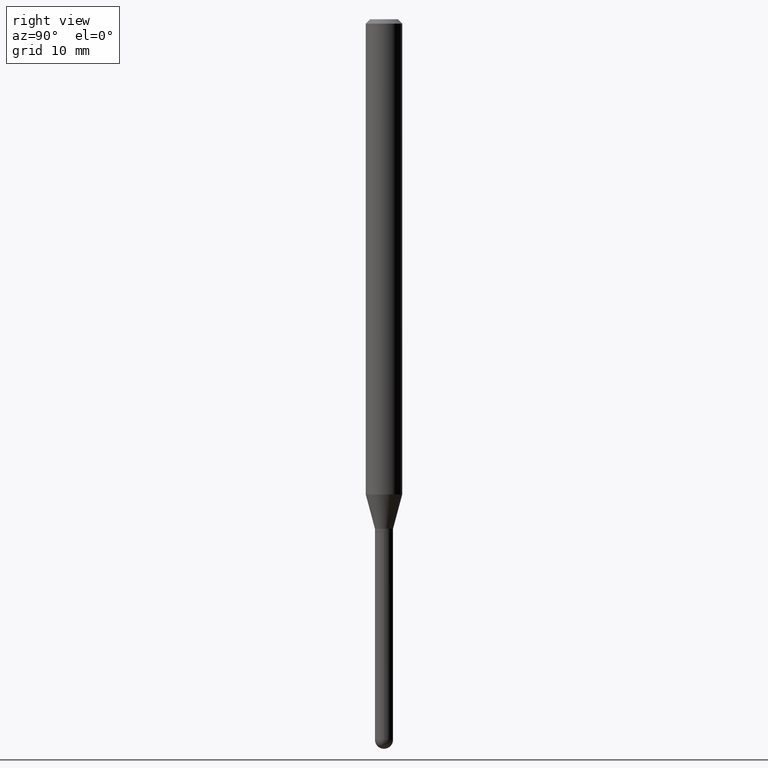
[diagram: clean part render]
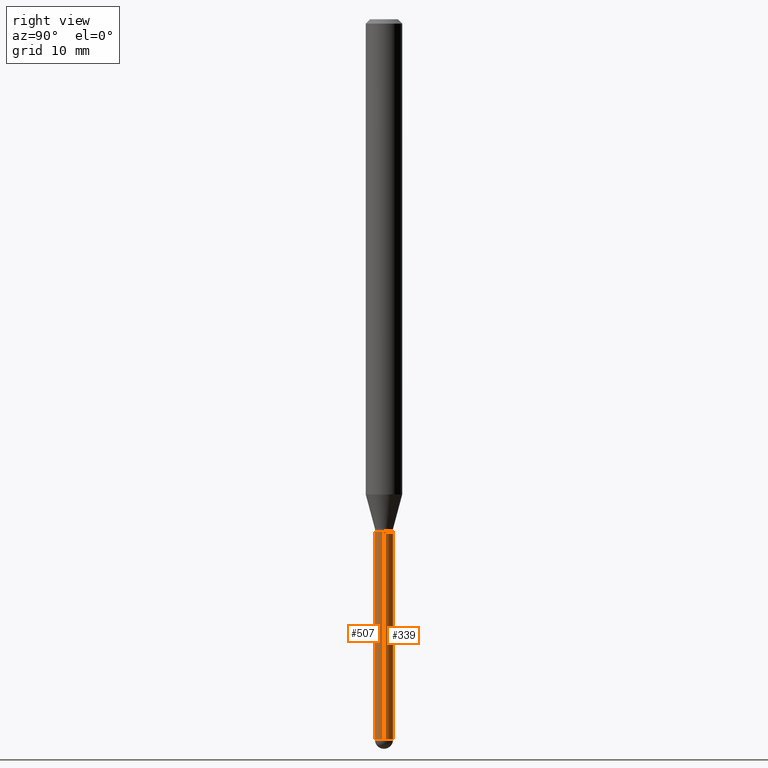
[diagram: same view with one multi-face feature highlighted, each face labeled with its STEP entity id]
A machine part, right view. The highlighted faces form ONE feature: a constant-radius fillet chain: 2 tangent blend faces with common blend radius 0.7874 mm. The faces share edges in the B-rep.
Their STEP definitions:
[1] entity #507 (Cylinder):
#3 = LINE ( 'NONE', #278, #430 ) ;
#10 = DIRECTION ( 'NONE',  ( -2.445468806185136597E-29, 3.491481338843145583E-15, 1.000000000000000000 ) ) ;
#15 = AXIS2_PLACEMENT_3D ( 'NONE', #427, #466, #35 ) ;
#26 = DIRECTION ( 'NONE',  ( 1.000000000000000000, -6.982962677686270655E-15, 0.000000000000000000 ) ) ;
#35 = DIRECTION ( 'NONE',  ( 1.000000000000000000, -6.982962677686270655E-15, 0.000000000000000000 ) ) ;
#41 = VERTEX_POINT ( 'NONE', #416 ) ;
#43 = ORIENTED_EDGE ( 'NONE', *, *, #242, .F. ) ;
#50 = CIRCLE ( 'NONE', #321, 0.03099999999999999978 ) ;
#65 = DIRECTION ( 'NONE',  ( -2.445468806185136877E-29, 3.491481338843145188E-15, 1.000000000000000000 ) ) ;
#71 = CARTESIAN_POINT ( 'NONE',  ( 0.03099999999999999978, -2.164718430082742572E-16, 1.511614800496739984E-30 ) ) ;
#85 = CARTESIAN_POINT ( 'NONE',  ( -0.03099999999999999978, -7.155486080220514781E-15, -1.756000000000000005 ) ) ;
#99 = VERTEX_POINT ( 'NONE', #151 ) ;
#107 = FACE_OUTER_BOUND ( 'NONE', #484, .T. ) ;
#151 = CARTESIAN_POINT ( 'NONE',  ( 0.03099999999999999978, -7.592226171314421154E-15, -2.469000000000000306 ) ) ;
#160 = EDGE_CURVE ( 'NONE', #99, #450, #418, .T. ) ;
#161 = DIRECTION ( 'NONE',  ( -2.445468806185136877E-29, 3.491481338843145188E-15, 1.000000000000000000 ) ) ;
#166 = CIRCLE ( 'NONE', #462, 0.03099999999999999978 ) ;
#172 = ORIENTED_EDGE ( 'NONE', *, *, #184, .T. ) ;
#182 = AXIS2_PLACEMENT_3D ( 'NONE', #261, #489, #415 ) ;
#184 = EDGE_CURVE ( 'NONE', #41, #237, #166, .T. ) ;
#188 = CARTESIAN_POINT ( 'NONE',  ( 4.294243223661099859E-29, -6.131041231008564292E-15, -1.756000000000000005 ) ) ;
#195 = ORIENTED_EDGE ( 'NONE', *, *, #366, .F. ) ;
#231 = EDGE_CURVE ( 'NONE', #237, #99, #238, .T. ) ;
#237 = VERTEX_POINT ( 'NONE', #431 ) ;
#238 = CIRCLE ( 'NONE', #15, 0.03099999999999999978 ) ;
#239 = DIRECTION ( 'NONE',  ( 1.000000000000000000, -6.982962677686270655E-15, 0.000000000000000000 ) ) ;
#240 = VERTEX_POINT ( 'NONE', #85 ) ;
#242 = EDGE_CURVE ( 'NONE', #41, #240, #3, .T. ) ;
#261 = CARTESIAN_POINT ( 'NONE',  ( 0.000000000000000000, 0.000000000000000000, 0.000000000000000000 ) ) ;
#278 = CARTESIAN_POINT ( 'NONE',  ( -0.03099999999999999978, 2.202682480856310560E-16, -1.524869877979020612E-30 ) ) ;
#288 = VECTOR ( 'NONE', #65, 39.37007874015748143 ) ;
#316 = CARTESIAN_POINT ( 'NONE',  ( 6.037862482471103495E-29, -8.620467425603728566E-15, -2.469000000000000306 ) ) ;
#321 = AXIS2_PLACEMENT_3D ( 'NONE', #188, #379, #26 ) ;
#336 = CYLINDRICAL_SURFACE ( 'NONE', #182, 0.03099999999999999978 ) ;
#364 = ORIENTED_EDGE ( 'NONE', *, *, #160, .T. ) ;
#366 = EDGE_CURVE ( 'NONE', #240, #450, #50, .T. ) ;
#379 = DIRECTION ( 'NONE',  ( -2.445468806185136597E-29, 3.491481338843145583E-15, 1.000000000000000000 ) ) ;
#388 = CARTESIAN_POINT ( 'NONE',  ( 0.03099999999999999978, -6.347513074016838623E-15, -1.756000000000000005 ) ) ;
#415 = DIRECTION ( 'NONE',  ( 1.000000000000000000, -6.982962677686266711E-15, 4.876176775795935232E-29 ) ) ;
#416 = CARTESIAN_POINT ( 'NONE',  ( -0.03099999999999999978, -7.155486080220514781E-15, -2.469000000000000306 ) ) ;
#418 = LINE ( 'NONE', #71, #288 ) ;
#427 = CARTESIAN_POINT ( 'NONE',  ( 6.037862482471103495E-29, -8.620467425603728566E-15, -2.469000000000000306 ) ) ;
#430 = VECTOR ( 'NONE', #161, 39.37007874015748143 ) ;
#431 = CARTESIAN_POINT ( 'NONE',  ( -2.202682480855692291E-16, -0.03100000000000842360, -2.469000000000000306 ) ) ;
#450 = VERTEX_POINT ( 'NONE', #388 ) ;
#462 = AXIS2_PLACEMENT_3D ( 'NONE', #316, #10, #239 ) ;
#466 = DIRECTION ( 'NONE',  ( -2.445468806185136597E-29, 3.491481338843145583E-15, 1.000000000000000000 ) ) ;
#478 = ORIENTED_EDGE ( 'NONE', *, *, #231, .T. ) ;
#484 = EDGE_LOOP ( 'NONE', ( #43, #172, #478, #364, #195 ) ) ;
#489 = DIRECTION ( 'NONE',  ( -2.445468806185136597E-29, 3.491481338843145583E-15, 1.000000000000000000 ) ) ;
#507 = ADVANCED_FACE ( 'NONE', ( #107 ), #336, .T. ) ;
[2] entity #339 (Cylinder):
#3 = LINE ( 'NONE', #278, #430 ) ;
#23 = AXIS2_PLACEMENT_3D ( 'NONE', #232, #223, #351 ) ;
#41 = VERTEX_POINT ( 'NONE', #416 ) ;
#63 = DIRECTION ( 'NONE',  ( -2.445468806185136597E-29, 3.491481338843145583E-15, 1.000000000000000000 ) ) ;
#65 = DIRECTION ( 'NONE',  ( -2.445468806185136877E-29, 3.491481338843145188E-15, 1.000000000000000000 ) ) ;
#66 = CARTESIAN_POINT ( 'NONE',  ( 6.037862482471103495E-29, -8.620467425603728566E-15, -2.469000000000000306 ) ) ;
#71 = CARTESIAN_POINT ( 'NONE',  ( 0.03099999999999999978, -2.164718430082742572E-16, 1.511614800496739984E-30 ) ) ;
#85 = CARTESIAN_POINT ( 'NONE',  ( -0.03099999999999999978, -7.155486080220514781E-15, -1.756000000000000005 ) ) ;
#99 = VERTEX_POINT ( 'NONE', #151 ) ;
#101 = CIRCLE ( 'NONE', #23, 0.03099999999999999978 ) ;
#121 = EDGE_CURVE ( 'NONE', #450, #240, #101, .T. ) ;
#132 = ORIENTED_EDGE ( 'NONE', *, *, #160, .F. ) ;
#139 = CARTESIAN_POINT ( 'NONE',  ( 0.000000000000000000, 0.000000000000000000, 0.000000000000000000 ) ) ;
#147 = ORIENTED_EDGE ( 'NONE', *, *, #380, .T. ) ;
#151 = CARTESIAN_POINT ( 'NONE',  ( 0.03099999999999999978, -7.592226171314421154E-15, -2.469000000000000306 ) ) ;
#160 = EDGE_CURVE ( 'NONE', #99, #450, #418, .T. ) ;
#161 = DIRECTION ( 'NONE',  ( -2.445468806185136877E-29, 3.491481338843145188E-15, 1.000000000000000000 ) ) ;
#163 = EDGE_LOOP ( 'NONE', ( #204, #367, #395, #132, #147 ) ) ;
#167 = DIRECTION ( 'NONE',  ( 1.000000000000000000, -6.982962677686266711E-15, 4.876176775795935232E-29 ) ) ;
#204 = ORIENTED_EDGE ( 'NONE', *, *, #385, .T. ) ;
#223 = DIRECTION ( 'NONE',  ( -2.445468806185136597E-29, 3.491481338843145583E-15, 1.000000000000000000 ) ) ;
#232 = CARTESIAN_POINT ( 'NONE',  ( 4.294243223661099859E-29, -6.131041231008564292E-15, -1.756000000000000005 ) ) ;
#240 = VERTEX_POINT ( 'NONE', #85 ) ;
#242 = EDGE_CURVE ( 'NONE', #41, #240, #3, .T. ) ;
#259 = CYLINDRICAL_SURFACE ( 'NONE', #280, 0.03099999999999999978 ) ;
#266 = CARTESIAN_POINT ( 'NONE',  ( 6.037862482471103495E-29, -8.620467425603728566E-15, -2.469000000000000306 ) ) ;
#275 = DIRECTION ( 'NONE',  ( -2.445468806185136597E-29, 3.491481338843145583E-15, 1.000000000000000000 ) ) ;
#278 = CARTESIAN_POINT ( 'NONE',  ( -0.03099999999999999978, 2.202682480856310560E-16, -1.524869877979020612E-30 ) ) ;
#280 = AXIS2_PLACEMENT_3D ( 'NONE', #139, #63, #167 ) ;
#281 = CIRCLE ( 'NONE', #447, 0.03099999999999999978 ) ;
#288 = VECTOR ( 'NONE', #65, 39.37007874015748143 ) ;
#302 = AXIS2_PLACEMENT_3D ( 'NONE', #266, #275, #508 ) ;
#339 = ADVANCED_FACE ( 'NONE', ( #355 ), #259, .T. ) ;
#351 = DIRECTION ( 'NONE',  ( 1.000000000000000000, -6.982962677686270655E-15, 0.000000000000000000 ) ) ;
#355 = FACE_OUTER_BOUND ( 'NONE', #163, .T. ) ;
#367 = ORIENTED_EDGE ( 'NONE', *, *, #242, .T. ) ;
#380 = EDGE_CURVE ( 'NONE', #99, #409, #281, .T. ) ;
#385 = EDGE_CURVE ( 'NONE', #409, #41, #424, .T. ) ;
#388 = CARTESIAN_POINT ( 'NONE',  ( 0.03099999999999999978, -6.347513074016838623E-15, -1.756000000000000005 ) ) ;
#395 = ORIENTED_EDGE ( 'NONE', *, *, #121, .F. ) ;
#409 = VERTEX_POINT ( 'NONE', #459 ) ;
#416 = CARTESIAN_POINT ( 'NONE',  ( -0.03099999999999999978, -7.155486080220514781E-15, -2.469000000000000306 ) ) ;
#418 = LINE ( 'NONE', #71, #288 ) ;
#424 = CIRCLE ( 'NONE', #302, 0.03099999999999999978 ) ;
#430 = VECTOR ( 'NONE', #161, 39.37007874015748143 ) ;
#447 = AXIS2_PLACEMENT_3D ( 'NONE', #66, #465, #511 ) ;
#450 = VERTEX_POINT ( 'NONE', #388 ) ;
#459 = CARTESIAN_POINT ( 'NONE',  ( 2.164718430083332245E-16, 0.03099999999999118044, -2.469000000000000306 ) ) ;
#465 = DIRECTION ( 'NONE',  ( -2.445468806185136597E-29, 3.491481338843145583E-15, 1.000000000000000000 ) ) ;
#508 = DIRECTION ( 'NONE',  ( 1.000000000000000000, -6.982962677686270655E-15, 0.000000000000000000 ) ) ;
#511 = DIRECTION ( 'NONE',  ( 1.000000000000000000, -6.982962677686270655E-15, 0.000000000000000000 ) ) ;